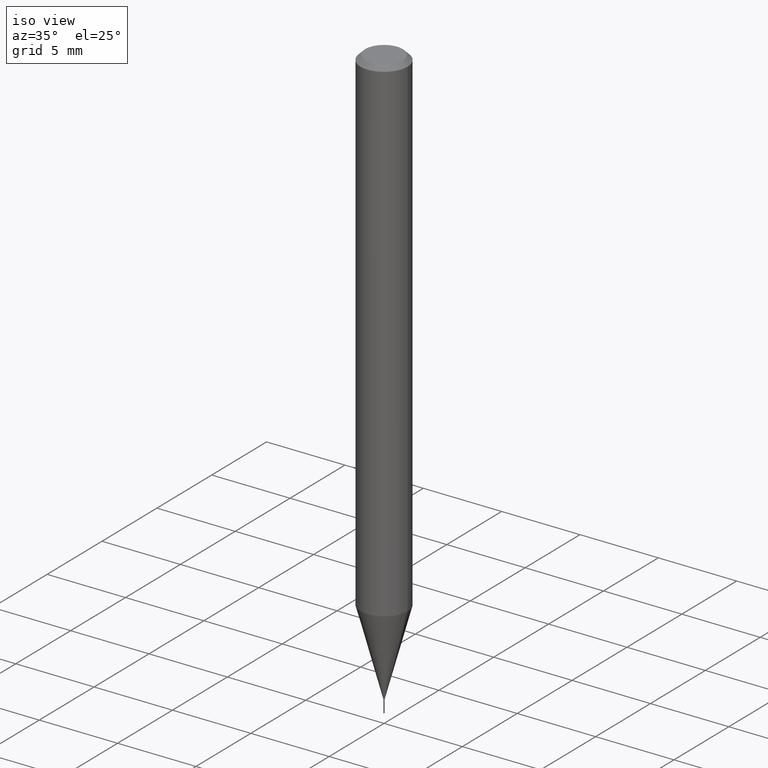
[diagram: clean part render]
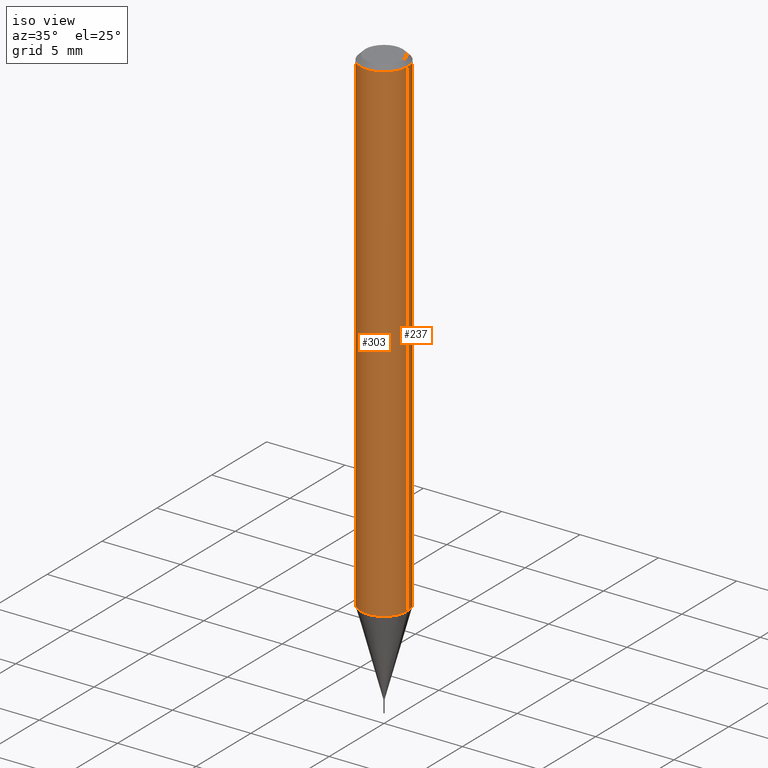
[diagram: same view with one multi-face feature highlighted, each face labeled with its STEP entity id]
A machine part, iso view. The highlighted faces form ONE feature: a constant-radius fillet chain: 2 tangent blend faces with common blend radius 1.4999 mm. The faces share edges in the B-rep.
Their STEP definitions:
[1] entity #303 (Cylinder):
#17 = LINE ( 'NONE', #165, #288 ) ;
#52 = EDGE_CURVE ( 'NONE', #118, #335, #434, .T. ) ;
#64 = CARTESIAN_POINT ( 'NONE',  ( 2.888098660104664204E-31, -4.123439461173780263E-17, -0.01181000000000007218 ) ) ;
#71 = CARTESIAN_POINT ( 'NONE',  ( 0.000000000000000000, 0.000000000000000000, 0.000000000000000000 ) ) ;
#74 = VECTOR ( 'NONE', #349, 39.37007874015748143 ) ;
#75 = AXIS2_PLACEMENT_3D ( 'NONE', #64, #371, #336 ) ;
#116 = DIRECTION ( 'NONE',  ( 1.000000000000000000, -6.982962677686266711E-15, 4.876176775795936353E-29 ) ) ;
#118 = VERTEX_POINT ( 'NONE', #468 ) ;
#119 = CARTESIAN_POINT ( 'NONE',  ( 0.05904999999999999832, -4.535783407291118600E-16, -0.01181000000000007218 ) ) ;
#153 = AXIS2_PLACEMENT_3D ( 'NONE', #71, #232, #116 ) ;
#165 = CARTESIAN_POINT ( 'NONE',  ( -0.05905000000000007465, 4.195754854663396902E-16, -2.904631170795525395E-30 ) ) ;
#173 = CARTESIAN_POINT ( 'NONE',  ( 3.052680815776794134E-29, -4.358419160682700425E-15, -1.248300860782146415 ) ) ;
#182 = ORIENTED_EDGE ( 'NONE', *, *, #432, .F. ) ;
#195 = CARTESIAN_POINT ( 'NONE',  ( 0.05905000000000007465, -4.123439461173745750E-16, 2.879382386107504074E-30 ) ) ;
#204 = EDGE_CURVE ( 'NONE', #283, #398, #388, .T. ) ;
#214 = ORIENTED_EDGE ( 'NONE', *, *, #52, .T. ) ;
#232 = DIRECTION ( 'NONE',  ( -2.445468806185136597E-29, 3.491481338843145583E-15, 1.000000000000000000 ) ) ;
#251 = AXIS2_PLACEMENT_3D ( 'NONE', #173, #326, #433 ) ;
#276 = CARTESIAN_POINT ( 'NONE',  ( 0.05905000000000015098, -4.770763106800076134E-15, -1.248300860782146415 ) ) ;
#282 = EDGE_LOOP ( 'NONE', ( #182, #214, #448, #333 ) ) ;
#283 = VERTEX_POINT ( 'NONE', #427 ) ;
#288 = VECTOR ( 'NONE', #291, 39.37007874015748143 ) ;
#291 = DIRECTION ( 'NONE',  ( -2.445468806185136877E-29, 3.491481338843145188E-15, 1.000000000000000000 ) ) ;
#303 = ADVANCED_FACE ( 'NONE', ( #458 ), #355, .T. ) ;
#316 = EDGE_CURVE ( 'NONE', #335, #398, #419, .T. ) ;
#326 = DIRECTION ( 'NONE',  ( -2.445468806185136597E-29, 3.491481338843145583E-15, 1.000000000000000000 ) ) ;
#333 = ORIENTED_EDGE ( 'NONE', *, *, #204, .F. ) ;
#335 = VERTEX_POINT ( 'NONE', #276 ) ;
#336 = DIRECTION ( 'NONE',  ( 1.000000000000000000, -6.982962677686266711E-15, 0.000000000000000000 ) ) ;
#349 = DIRECTION ( 'NONE',  ( -2.445468806185136877E-29, 3.491481338843145188E-15, 1.000000000000000000 ) ) ;
#355 = CYLINDRICAL_SURFACE ( 'NONE', #153, 0.05905000000000007465 ) ;
#371 = DIRECTION ( 'NONE',  ( -2.445468806185136597E-29, 3.491481338843145583E-15, 1.000000000000000000 ) ) ;
#388 = CIRCLE ( 'NONE', #75, 0.05904999999999999832 ) ;
#398 = VERTEX_POINT ( 'NONE', #119 ) ;
#419 = LINE ( 'NONE', #195, #74 ) ;
#427 = CARTESIAN_POINT ( 'NONE',  ( -0.05904999999999999832, -1.780251292180878401E-15, -0.01181000000000007218 ) ) ;
#432 = EDGE_CURVE ( 'NONE', #118, #283, #17, .T. ) ;
#433 = DIRECTION ( 'NONE',  ( 1.000000000000000000, -6.982962677686262766E-15, 0.000000000000000000 ) ) ;
#434 = CIRCLE ( 'NONE', #251, 0.05905000000000015098 ) ;
#448 = ORIENTED_EDGE ( 'NONE', *, *, #316, .T. ) ;
#458 = FACE_OUTER_BOUND ( 'NONE', #282, .T. ) ;
#468 = CARTESIAN_POINT ( 'NONE',  ( -0.05905000000000015098, -3.938843675216360143E-15, -1.248300860782146415 ) ) ;
[2] entity #237 (Cylinder):
#17 = LINE ( 'NONE', #165, #288 ) ;
#74 = VECTOR ( 'NONE', #349, 39.37007874015748143 ) ;
#88 = EDGE_LOOP ( 'NONE', ( #368, #275, #279, #313 ) ) ;
#118 = VERTEX_POINT ( 'NONE', #468 ) ;
#119 = CARTESIAN_POINT ( 'NONE',  ( 0.05904999999999999832, -4.535783407291118600E-16, -0.01181000000000007218 ) ) ;
#130 = AXIS2_PLACEMENT_3D ( 'NONE', #145, #302, #261 ) ;
#145 = CARTESIAN_POINT ( 'NONE',  ( 0.000000000000000000, 0.000000000000000000, 0.000000000000000000 ) ) ;
#165 = CARTESIAN_POINT ( 'NONE',  ( -0.05905000000000007465, 4.195754854663396902E-16, -2.904631170795525395E-30 ) ) ;
#180 = FACE_OUTER_BOUND ( 'NONE', #88, .T. ) ;
#195 = CARTESIAN_POINT ( 'NONE',  ( 0.05905000000000007465, -4.123439461173745750E-16, 2.879382386107504074E-30 ) ) ;
#196 = DIRECTION ( 'NONE',  ( 1.000000000000000000, -6.982962677686262766E-15, 0.000000000000000000 ) ) ;
#200 = CARTESIAN_POINT ( 'NONE',  ( 3.052680815776794134E-29, -4.358419160682700425E-15, -1.248300860782146415 ) ) ;
#227 = EDGE_CURVE ( 'NONE', #398, #283, #407, .T. ) ;
#229 = CARTESIAN_POINT ( 'NONE',  ( 2.888098660104664204E-31, -4.123439461173780263E-17, -0.01181000000000007218 ) ) ;
#237 = ADVANCED_FACE ( 'NONE', ( #180 ), #339, .T. ) ;
#250 = DIRECTION ( 'NONE',  ( -2.445468806185136597E-29, 3.491481338843145583E-15, 1.000000000000000000 ) ) ;
#261 = DIRECTION ( 'NONE',  ( 1.000000000000000000, -6.982962677686266711E-15, 4.876176775795936353E-29 ) ) ;
#267 = AXIS2_PLACEMENT_3D ( 'NONE', #229, #250, #373 ) ;
#275 = ORIENTED_EDGE ( 'NONE', *, *, #432, .T. ) ;
#276 = CARTESIAN_POINT ( 'NONE',  ( 0.05905000000000015098, -4.770763106800076134E-15, -1.248300860782146415 ) ) ;
#279 = ORIENTED_EDGE ( 'NONE', *, *, #227, .F. ) ;
#283 = VERTEX_POINT ( 'NONE', #427 ) ;
#288 = VECTOR ( 'NONE', #291, 39.37007874015748143 ) ;
#291 = DIRECTION ( 'NONE',  ( -2.445468806185136877E-29, 3.491481338843145188E-15, 1.000000000000000000 ) ) ;
#302 = DIRECTION ( 'NONE',  ( -2.445468806185136597E-29, 3.491481338843145583E-15, 1.000000000000000000 ) ) ;
#313 = ORIENTED_EDGE ( 'NONE', *, *, #316, .F. ) ;
#316 = EDGE_CURVE ( 'NONE', #335, #398, #419, .T. ) ;
#335 = VERTEX_POINT ( 'NONE', #276 ) ;
#339 = CYLINDRICAL_SURFACE ( 'NONE', #130, 0.05905000000000007465 ) ;
#349 = DIRECTION ( 'NONE',  ( -2.445468806185136877E-29, 3.491481338843145188E-15, 1.000000000000000000 ) ) ;
#366 = AXIS2_PLACEMENT_3D ( 'NONE', #200, #389, #196 ) ;
#368 = ORIENTED_EDGE ( 'NONE', *, *, #376, .T. ) ;
#373 = DIRECTION ( 'NONE',  ( 1.000000000000000000, -6.982962677686266711E-15, 0.000000000000000000 ) ) ;
#376 = EDGE_CURVE ( 'NONE', #335, #118, #423, .T. ) ;
#389 = DIRECTION ( 'NONE',  ( -2.445468806185136597E-29, 3.491481338843145583E-15, 1.000000000000000000 ) ) ;
#398 = VERTEX_POINT ( 'NONE', #119 ) ;
#407 = CIRCLE ( 'NONE', #267, 0.05904999999999999832 ) ;
#419 = LINE ( 'NONE', #195, #74 ) ;
#423 = CIRCLE ( 'NONE', #366, 0.05905000000000015098 ) ;
#427 = CARTESIAN_POINT ( 'NONE',  ( -0.05904999999999999832, -1.780251292180878401E-15, -0.01181000000000007218 ) ) ;
#432 = EDGE_CURVE ( 'NONE', #118, #283, #17, .T. ) ;
#468 = CARTESIAN_POINT ( 'NONE',  ( -0.05905000000000015098, -3.938843675216360143E-15, -1.248300860782146415 ) ) ;